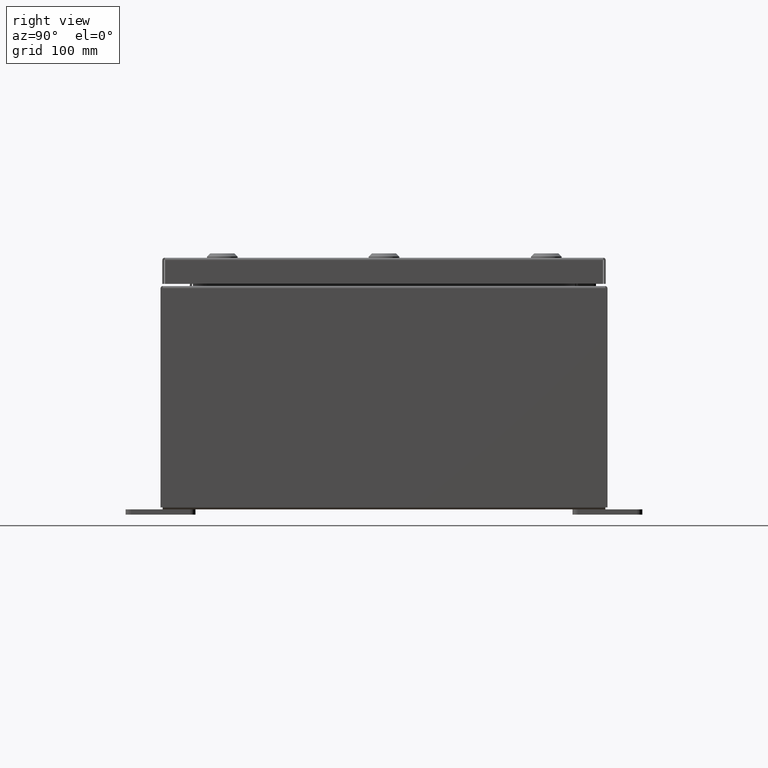
[diagram: clean part render]
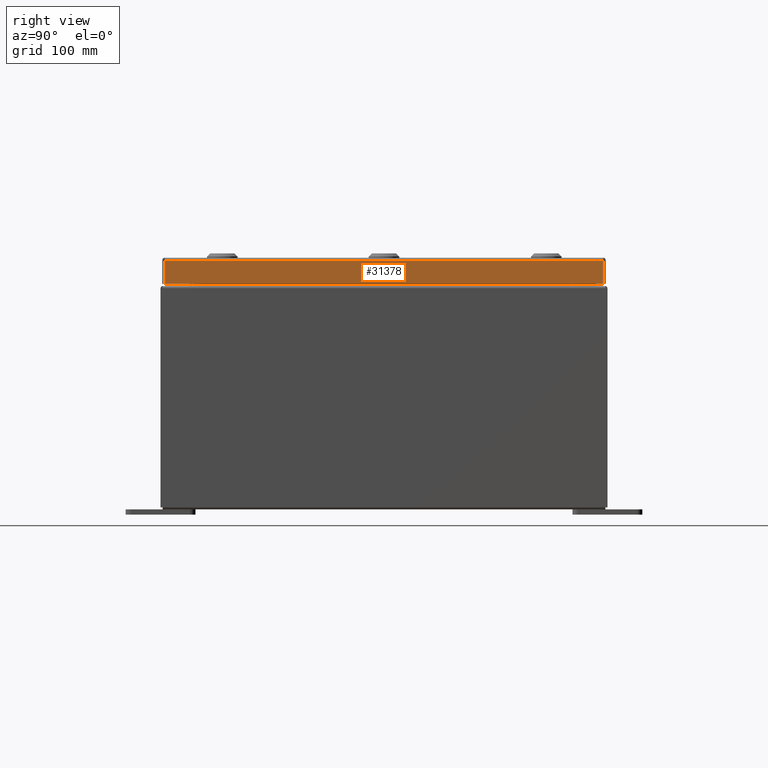
[diagram: same view with one face highlighted and labeled with its STEP entity id]
A machine part, right view. The second image highlights one B-rep face of the part: STEP entity #31378.
In plain terms, the highlighted planar face has unit normal (1, 0, 0).
Its self-contained STEP definition (entity closure, byte-faithful):
#3432 = CARTESIAN_POINT ( 'NONE',  ( 7.937500000000003600, 7.848657864376275700, -0.9376999999999997600 ) ) ;
#3746 = DIRECTION ( 'NONE',  ( 3.798629886902798700E-015, 0.0000000000000000000, -1.000000000000000000 ) ) ;
#6968 = CARTESIAN_POINT ( 'NONE',  ( 7.937500000000000000, 7.848657864376269400, 8.521932332017084000E-014 ) ) ;
#8315 = ORIENTED_EDGE ( 'NONE', *, *, #45562, .F. ) ;
#9278 = VECTOR ( 'NONE', #13524, 39.37007874015748100 ) ;
#12497 = EDGE_CURVE ( 'NONE', #56071, #50332, #39743, .T. ) ;
#13524 = DIRECTION ( 'NONE',  ( -3.798629886902798700E-015, -6.982962677686267500E-015, 1.000000000000000000 ) ) ;
#13546 = CARTESIAN_POINT ( 'NONE',  ( 7.937500000000003600, -7.937500000000000000, -0.9376999999999997600 ) ) ;
#14004 = VERTEX_POINT ( 'NONE', #15042 ) ;
#15042 = CARTESIAN_POINT ( 'NONE',  ( 7.937500000000003600, -7.848657864376263200, -0.9376999999999996400 ) ) ;
#17546 = AXIS2_PLACEMENT_3D ( 'NONE', #37288, #32687, #3746 ) ;
#18197 = CARTESIAN_POINT ( 'NONE',  ( 7.937500000000000000, -7.848657864376269400, -0.08769999999999997200 ) ) ;
#18634 = CARTESIAN_POINT ( 'NONE',  ( 7.937500000000000000, 0.0000000000000000000, -0.08769999999999997200 ) ) ;
#21272 = VECTOR ( 'NONE', #57201, 39.37007874015748100 ) ;
#21387 = VECTOR ( 'NONE', #32727, 39.37007874015748100 ) ;
#22131 = LINE ( 'NONE', #61640, #9278 ) ;
#23061 = EDGE_CURVE ( 'NONE', #56071, #14004, #50031, .T. ) ;
#29375 = ORIENTED_EDGE ( 'NONE', *, *, #35924, .T. ) ;
#31378 = ADVANCED_FACE ( 'NONE', ( #58747 ), #61615, .T. ) ;
#32687 = DIRECTION ( 'NONE',  ( 1.000000000000000000, 0.0000000000000000000, 3.798629886902798700E-015 ) ) ;
#32727 = DIRECTION ( 'NONE',  ( 0.0000000000000000000, -1.000000000000000000, 0.0000000000000000000 ) ) ;
#34049 = LINE ( 'NONE', #18634, #21272 ) ;
#35230 = VECTOR ( 'NONE', #45573, 39.37007874015748100 ) ;
#35924 = EDGE_CURVE ( 'NONE', #50332, #46681, #34049, .T. ) ;
#37288 = CARTESIAN_POINT ( 'NONE',  ( 7.937500000000000000, 0.0000000000000000000, 3.041243838330255000E-014 ) ) ;
#37793 = ORIENTED_EDGE ( 'NONE', *, *, #12497, .T. ) ;
#39743 = LINE ( 'NONE', #6968, #35230 ) ;
#45562 = EDGE_CURVE ( 'NONE', #14004, #46681, #22131, .T. ) ;
#45573 = DIRECTION ( 'NONE',  ( -3.798629886902798700E-015, -6.982962677686267500E-015, 1.000000000000000000 ) ) ;
#46681 = VERTEX_POINT ( 'NONE', #18197 ) ;
#48602 = ORIENTED_EDGE ( 'NONE', *, *, #23061, .F. ) ;
#50031 = LINE ( 'NONE', #13546, #21387 ) ;
#50332 = VERTEX_POINT ( 'NONE', #53007 ) ;
#53007 = CARTESIAN_POINT ( 'NONE',  ( 7.937500000000000000, 7.848657864376269400, -0.08769999999999997200 ) ) ;
#55042 = EDGE_LOOP ( 'NONE', ( #8315, #48602, #37793, #29375 ) ) ;
#56071 = VERTEX_POINT ( 'NONE', #3432 ) ;
#57201 = DIRECTION ( 'NONE',  ( 0.0000000000000000000, -1.000000000000000000, 0.0000000000000000000 ) ) ;
#58747 = FACE_OUTER_BOUND ( 'NONE', #55042, .T. ) ;
#61615 = PLANE ( 'NONE',  #17546 ) ;
#61640 = CARTESIAN_POINT ( 'NONE',  ( 7.937500000000000000, -7.848657864376269400, -0.07469999999999972500 ) ) ;